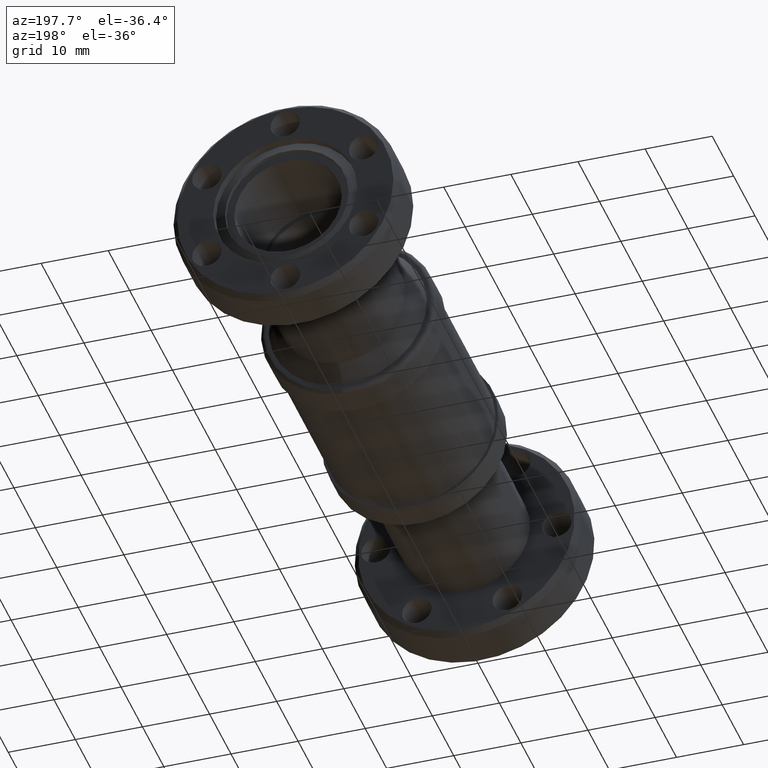
[diagram: clean part render]
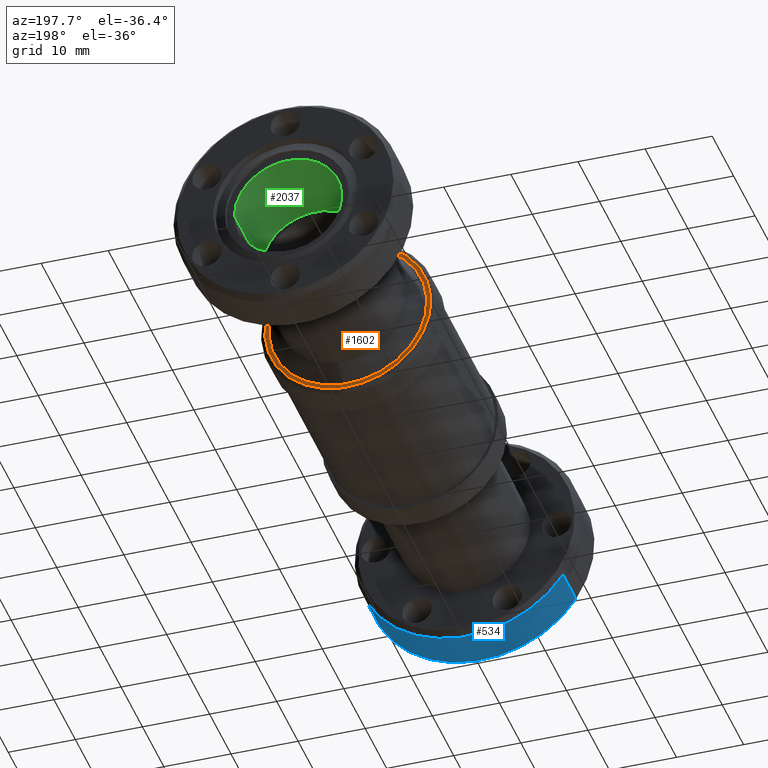
[diagram: same view with three faces highlighted in distinct colors, each labeled with its STEP entity id]
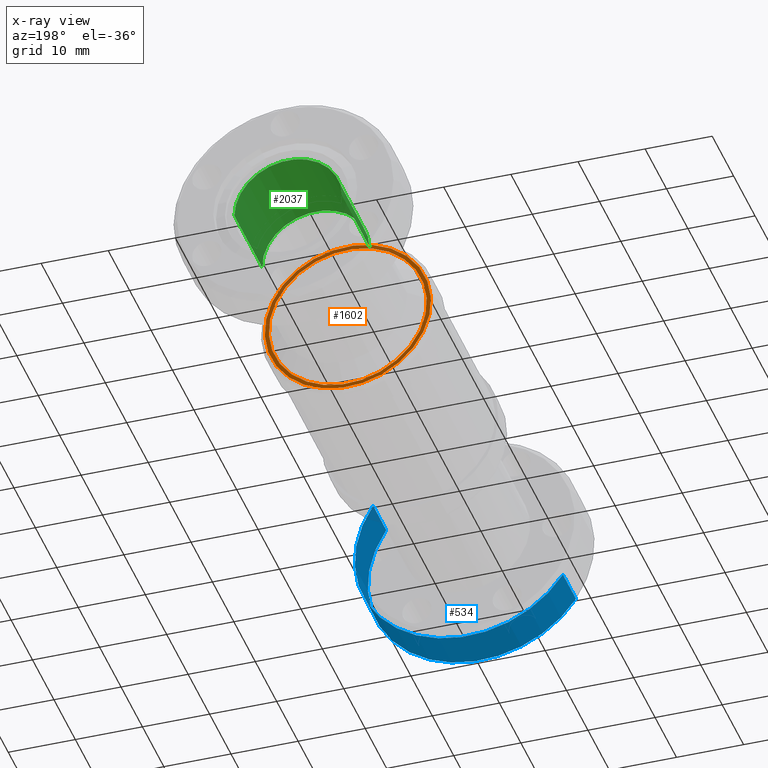
[diagram: x-ray of the same camera — body ghosted, the three highlighted faces saturated]
A machine part, auxiliary view with three faces highlighted in distinct colors.
The next image is the same camera in x-ray (body ghosted, the three faces saturated) — at least one of them is partly hidden behind the body in this view.
Their STEP definitions:

[orange] entity #1602 — the highlighted planar face has unit normal (0, 1, 0).
#45 = DIRECTION ( 'NONE',  ( -0.06510497049688147853, 0.0000000000000000000, 0.9978784208592749172 ) ) ;
#116 = CARTESIAN_POINT ( 'NONE',  ( -0.03173867311722960299, -1.150000000000000133, 0.4864657301688964375 ) ) ;
#124 = ORIENTED_EDGE ( 'NONE', *, *, #2499, .T. ) ;
#148 = FACE_BOUND ( 'NONE', #2648, .T. ) ;
#205 = DIRECTION ( 'NONE',  ( 0.0000000000000000000, -1.000000000000000000, 0.0000000000000000000 ) ) ;
#281 = CIRCLE ( 'NONE', #2497, 0.4637132034355964660 ) ;
#287 = EDGE_CURVE ( 'NONE', #958, #324, #2293, .T. ) ;
#296 = CARTESIAN_POINT ( 'NONE',  ( 1.102182119232617048E-16, -1.150000000000000133, 0.0000000000000000000 ) ) ;
#324 = VERTEX_POINT ( 'NONE', #3336 ) ;
#539 = CARTESIAN_POINT ( 'NONE',  ( 1.102182119232617048E-16, -1.150000000000000133, 0.0000000000000000000 ) ) ;
#620 = CIRCLE ( 'NONE', #2771, 0.4874999999999999334 ) ;
#677 = DIRECTION ( 'NONE',  ( 0.0000000000000000000, 1.000000000000000000, 0.0000000000000000000 ) ) ;
#958 = VERTEX_POINT ( 'NONE', #2501 ) ;
#1013 = AXIS2_PLACEMENT_3D ( 'NONE', #2476, #677, #1911 ) ;
#1024 = CARTESIAN_POINT ( 'NONE',  ( 1.102182119232617048E-16, -1.150000000000000133, 0.0000000000000000000 ) ) ;
#1059 = DIRECTION ( 'NONE',  ( -0.06510497049688146465, 0.0000000000000000000, 0.9978784208592748062 ) ) ;
#1183 = FACE_OUTER_BOUND ( 'NONE', #2527, .T. ) ;
#1271 = DIRECTION ( 'NONE',  ( -0.06510497049688147853, 0.0000000000000000000, 0.9978784208592749172 ) ) ;
#1333 = DIRECTION ( 'NONE',  ( 0.0000000000000000000, -1.000000000000000000, 0.0000000000000000000 ) ) ;
#1412 = AXIS2_PLACEMENT_3D ( 'NONE', #1024, #205, #1271 ) ;
#1602 = ADVANCED_FACE ( 'NONE', ( #148, #1183 ), #2398, .T. ) ;
#1868 = VERTEX_POINT ( 'NONE', #2597 ) ;
#1911 = DIRECTION ( 'NONE',  ( 0.06510497049688146465, 0.0000000000000000000, -0.9978784208592749172 ) ) ;
#2084 = DIRECTION ( 'NONE',  ( 0.0000000000000000000, -1.000000000000000000, 0.0000000000000000000 ) ) ;
#2100 = CARTESIAN_POINT ( 'NONE',  ( 1.102182119232617048E-16, -1.150000000000000133, 0.0000000000000000000 ) ) ;
#2282 = DIRECTION ( 'NONE',  ( 0.0000000000000000000, -1.000000000000000000, 0.0000000000000000000 ) ) ;
#2293 = CIRCLE ( 'NONE', #2732, 0.4637132034355964660 ) ;
#2398 = PLANE ( 'NONE',  #1013 ) ;
#2476 = CARTESIAN_POINT ( 'NONE',  ( 0.4864657301688966040, -1.150000000000000133, 0.03173867311722971402 ) ) ;
#2481 = VERTEX_POINT ( 'NONE', #116 ) ;
#2497 = AXIS2_PLACEMENT_3D ( 'NONE', #296, #2084, #3119 ) ;
#2499 = EDGE_CURVE ( 'NONE', #324, #958, #281, .T. ) ;
#2501 = CARTESIAN_POINT ( 'NONE',  ( 0.03019003442868894993, -1.150000000000000133, -0.4627293991759086622 ) ) ;
#2509 = ORIENTED_EDGE ( 'NONE', *, *, #287, .T. ) ;
#2527 = EDGE_LOOP ( 'NONE', ( #2610, #3130 ) ) ;
#2597 = CARTESIAN_POINT ( 'NONE',  ( 0.03173867311722976259, -1.150000000000000133, -0.4864657301688964375 ) ) ;
#2610 = ORIENTED_EDGE ( 'NONE', *, *, #3097, .F. ) ;
#2648 = EDGE_LOOP ( 'NONE', ( #124, #2509 ) ) ;
#2732 = AXIS2_PLACEMENT_3D ( 'NONE', #539, #2282, #1059 ) ;
#2771 = AXIS2_PLACEMENT_3D ( 'NONE', #2100, #1333, #45 ) ;
#2858 = CIRCLE ( 'NONE', #1412, 0.4874999999999999334 ) ;
#3027 = EDGE_CURVE ( 'NONE', #1868, #2481, #2858, .T. ) ;
#3097 = EDGE_CURVE ( 'NONE', #2481, #1868, #620, .T. ) ;
#3119 = DIRECTION ( 'NONE',  ( -0.06510497049688146465, 0.0000000000000000000, 0.9978784208592748062 ) ) ;
#3130 = ORIENTED_EDGE ( 'NONE', *, *, #3027, .F. ) ;
#3336 = CARTESIAN_POINT ( 'NONE',  ( -0.03019003442868878687, -1.150000000000000133, 0.4627293991759086622 ) ) ;

[blue] entity #534 — the highlighted cylindrical surface (partial cylindrical patch) has radius 16.891 mm, axis along (0, -1, 0).
#66 = CIRCLE ( 'NONE', #2377, 0.6650000000000000355 ) ;
#151 = EDGE_CURVE ( 'NONE', #2299, #3115, #981, .T. ) ;
#228 = AXIS2_PLACEMENT_3D ( 'NONE', #1887, #1635, #1954 ) ;
#245 = ORIENTED_EDGE ( 'NONE', *, *, #2002, .F. ) ;
#253 = AXIS2_PLACEMENT_3D ( 'NONE', #1226, #1178, #1240 ) ;
#458 = CIRCLE ( 'NONE', #228, 0.6650000000000001465 ) ;
#460 = ORIENTED_EDGE ( 'NONE', *, *, #151, .F. ) ;
#473 = CARTESIAN_POINT ( 'NONE',  ( -0.5567174543802623221, -4.030000000000000249, -0.3637178521716523116 ) ) ;
#493 = ORIENTED_EDGE ( 'NONE', *, *, #2600, .T. ) ;
#534 = ADVANCED_FACE ( 'NONE', ( #947 ), #1963, .T. ) ;
#738 = CARTESIAN_POINT ( 'NONE',  ( 4.604671964794044765E-16, -3.360000000000000320, -1.326920237274670382E-31 ) ) ;
#947 = FACE_OUTER_BOUND ( 'NONE', #1068, .T. ) ;
#953 = DIRECTION ( 'NONE',  ( 1.224646799147352468E-16, -1.000000000000000000, 1.232595164407830946E-32 ) ) ;
#981 = LINE ( 'NONE', #473, #2889 ) ;
#1068 = EDGE_LOOP ( 'NONE', ( #460, #2555, #493, #245 ) ) ;
#1143 = CARTESIAN_POINT ( 'NONE',  ( 0.5567174543802632103, -3.360000000000000320, 0.3637178521716524782 ) ) ;
#1178 = DIRECTION ( 'NONE',  ( 1.224646799147352468E-16, -1.000000000000000000, 1.232595164407830946E-32 ) ) ;
#1226 = CARTESIAN_POINT ( 'NONE',  ( 5.425185320222771323E-16, -4.030000000000000249, -1.289008230495394166E-31 ) ) ;
#1240 = DIRECTION ( 'NONE',  ( 0.8371691043312221581, 0.0000000000000000000, 0.5469441386039886055 ) ) ;
#1256 = LINE ( 'NONE', #2803, #2229 ) ;
#1299 = CARTESIAN_POINT ( 'NONE',  ( -0.5567174543802623221, -3.600000000000000533, -0.3637178521716524782 ) ) ;
#1462 = VERTEX_POINT ( 'NONE', #1143 ) ;
#1635 = DIRECTION ( 'NONE',  ( 1.224646799147352468E-16, -1.000000000000000000, 1.232595164407830946E-32 ) ) ;
#1718 = EDGE_CURVE ( 'NONE', #2299, #1462, #66, .T. ) ;
#1768 = DIRECTION ( 'NONE',  ( 1.224646799147352468E-16, -1.000000000000000000, 1.232595164407830946E-32 ) ) ;
#1787 = DIRECTION ( 'NONE',  ( 1.224646799147352468E-16, -1.000000000000000000, 1.232595164407830946E-32 ) ) ;
#1887 = CARTESIAN_POINT ( 'NONE',  ( 4.898587196589408884E-16, -3.600000000000000533, -1.326920237274670382E-31 ) ) ;
#1954 = DIRECTION ( 'NONE',  ( 0.8371691043312221581, 0.0000000000000000000, 0.5469441386039886055 ) ) ;
#1963 = CYLINDRICAL_SURFACE ( 'NONE', #253, 0.6650000000000000355 ) ;
#2002 = EDGE_CURVE ( 'NONE', #3115, #2511, #458, .T. ) ;
#2039 = CARTESIAN_POINT ( 'NONE',  ( -0.5567174543802622111, -3.360000000000000320, -0.3637178521716522561 ) ) ;
#2040 = DIRECTION ( 'NONE',  ( 0.8371691043312221581, 0.0000000000000000000, 0.5469441386039886055 ) ) ;
#2229 = VECTOR ( 'NONE', #1787, 39.37007874015748143 ) ;
#2299 = VERTEX_POINT ( 'NONE', #2039 ) ;
#2377 = AXIS2_PLACEMENT_3D ( 'NONE', #738, #1768, #2040 ) ;
#2511 = VERTEX_POINT ( 'NONE', #2913 ) ;
#2555 = ORIENTED_EDGE ( 'NONE', *, *, #1718, .T. ) ;
#2600 = EDGE_CURVE ( 'NONE', #1462, #2511, #1256, .T. ) ;
#2803 = CARTESIAN_POINT ( 'NONE',  ( 0.5567174543802633213, -4.030000000000000249, 0.3637178521716524782 ) ) ;
#2889 = VECTOR ( 'NONE', #953, 39.37007874015748143 ) ;
#2913 = CARTESIAN_POINT ( 'NONE',  ( 0.5567174543802634323, -3.600000000000000533, 0.3637178521716526447 ) ) ;
#3115 = VERTEX_POINT ( 'NONE', #1299 ) ;

[green] entity #2037 — the highlighted cylindrical surface (partial cylindrical patch) has radius 8.001 mm, axis along (-0, 1, -0).
#8 = ORIENTED_EDGE ( 'NONE', *, *, #2721, .F. ) ;
#144 = VERTEX_POINT ( 'NONE', #970 ) ;
#169 = CARTESIAN_POINT ( 'NONE',  ( 5.535403532146032868E-17, -0.05200000000000008782, 0.0000000000000000000 ) ) ;
#215 = CARTESIAN_POINT ( 'NONE',  ( 0.3150000000000000577, 0.4000000000000000222, 3.857637417314163305E-17 ) ) ;
#341 = CARTESIAN_POINT ( 'NONE',  ( 0.3150000000000001132, -0.5599999999999998312, 3.857637417314163305E-17 ) ) ;
#389 = VERTEX_POINT ( 'NONE', #341 ) ;
#592 = CARTESIAN_POINT ( 'NONE',  ( -0.3150000000000000022, -0.05200000000000012945, 0.0000000000000000000 ) ) ;
#873 = DIRECTION ( 'NONE',  ( -1.000000000000000000, -2.168133328304970315E-16, 0.0000000000000000000 ) ) ;
#892 = FACE_OUTER_BOUND ( 'NONE', #2658, .T. ) ;
#949 = AXIS2_PLACEMENT_3D ( 'NONE', #2964, #2744, #873 ) ;
#970 = CARTESIAN_POINT ( 'NONE',  ( -0.3149999999999998357, -0.5599999999999999423, 0.0000000000000000000 ) ) ;
#976 = DIRECTION ( 'NONE',  ( -1.224646799147352221E-16, 1.000000000000000000, -0.0000000000000000000 ) ) ;
#1121 = CARTESIAN_POINT ( 'NONE',  ( 0.3150000000000001132, -0.05200000000000004619, 3.857637417314163305E-17 ) ) ;
#1125 = VECTOR ( 'NONE', #2138, 39.37007874015748143 ) ;
#1174 = AXIS2_PLACEMENT_3D ( 'NONE', #169, #1682, #1238 ) ;
#1238 = DIRECTION ( 'NONE',  ( -1.000000000000000000, -1.355083330190606509E-16, 0.0000000000000000000 ) ) ;
#1251 = EDGE_CURVE ( 'NONE', #2577, #2000, #1572, .T. ) ;
#1320 = CARTESIAN_POINT ( 'NONE',  ( -0.3150000000000000577, 0.3999999999999999112, 0.0000000000000000000 ) ) ;
#1443 = DIRECTION ( 'NONE',  ( -1.000000000000000000, -2.168133328304970808E-16, 0.0000000000000000000 ) ) ;
#1527 = CIRCLE ( 'NONE', #2068, 0.3150000000000000022 ) ;
#1572 = CIRCLE ( 'NONE', #1174, 0.3150000000000000577 ) ;
#1682 = DIRECTION ( 'NONE',  ( -1.224646799147352221E-16, 1.000000000000000000, -0.0000000000000000000 ) ) ;
#1946 = CARTESIAN_POINT ( 'NONE',  ( 1.175660927181457955E-16, -0.5599999999999999423, 0.0000000000000000000 ) ) ;
#2000 = VERTEX_POINT ( 'NONE', #1121 ) ;
#2037 = ADVANCED_FACE ( 'NONE', ( #892 ), #3000, .F. ) ;
#2068 = AXIS2_PLACEMENT_3D ( 'NONE', #1946, #2980, #1443 ) ;
#2138 = DIRECTION ( 'NONE',  ( -1.224646799147352221E-16, 1.000000000000000000, -0.0000000000000000000 ) ) ;
#2207 = ORIENTED_EDGE ( 'NONE', *, *, #1251, .T. ) ;
#2257 = EDGE_CURVE ( 'NONE', #144, #389, #1527, .T. ) ;
#2454 = ORIENTED_EDGE ( 'NONE', *, *, #2798, .T. ) ;
#2577 = VERTEX_POINT ( 'NONE', #592 ) ;
#2658 = EDGE_LOOP ( 'NONE', ( #8, #2892, #2454, #2207 ) ) ;
#2670 = VECTOR ( 'NONE', #976, 39.37007874015748143 ) ;
#2721 = EDGE_CURVE ( 'NONE', #389, #2000, #3029, .T. ) ;
#2744 = DIRECTION ( 'NONE',  ( -1.224646799147352221E-16, 1.000000000000000000, -0.0000000000000000000 ) ) ;
#2798 = EDGE_CURVE ( 'NONE', #144, #2577, #2848, .T. ) ;
#2848 = LINE ( 'NONE', #1320, #1125 ) ;
#2892 = ORIENTED_EDGE ( 'NONE', *, *, #2257, .F. ) ;
#2964 = CARTESIAN_POINT ( 'NONE',  ( 0.0000000000000000000, 0.3999999999999999667, 0.0000000000000000000 ) ) ;
#2980 = DIRECTION ( 'NONE',  ( -1.224646799147352221E-16, 1.000000000000000000, -0.0000000000000000000 ) ) ;
#3000 = CYLINDRICAL_SURFACE ( 'NONE', #949, 0.3150000000000000577 ) ;
#3029 = LINE ( 'NONE', #215, #2670 ) ;